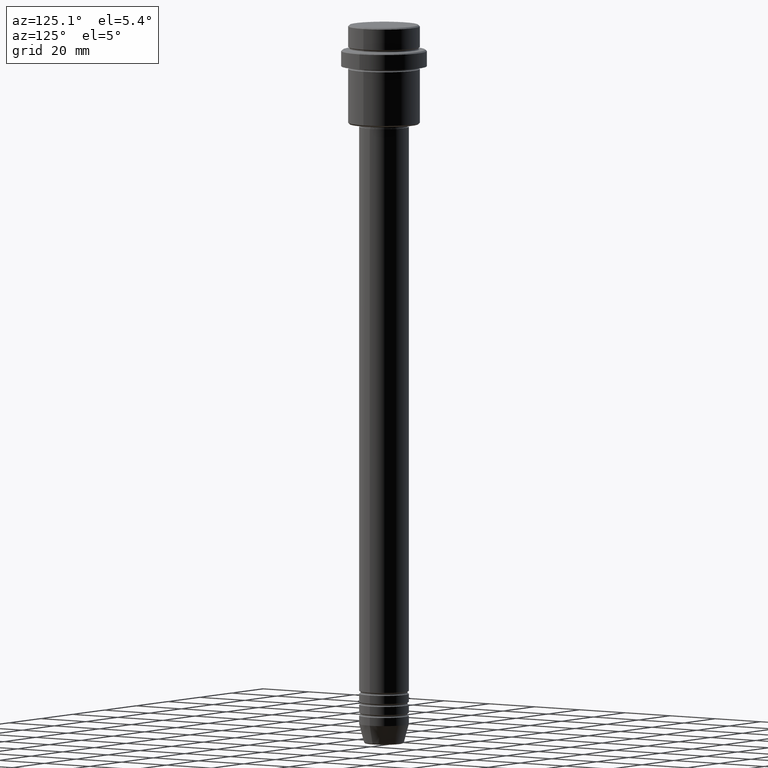
[diagram: clean part render]
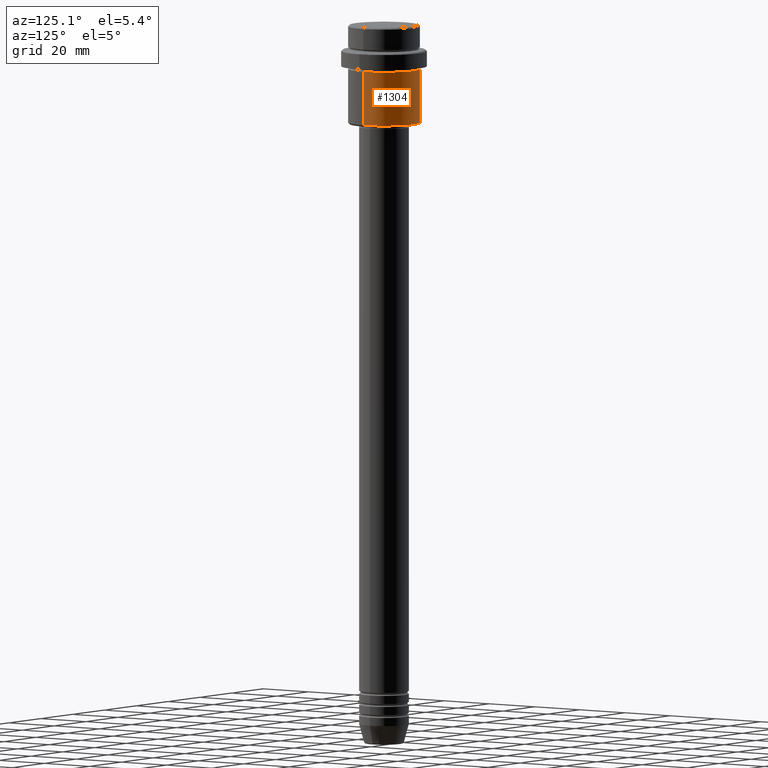
[diagram: same view with one face highlighted and labeled with its STEP entity id]
A machine part, auxiliary view. The second image highlights one B-rep face of the part: STEP entity #1304.
In plain terms, the highlighted cylindrical surface (edge-blend (fillet) strip) has radius 13 mm, axis along (-0, -0, 1).
Its self-contained STEP definition (entity closure, byte-faithful):
#27 = CIRCLE ( 'NONE', #133, 13.00000000000000000 ) ;
#133 = AXIS2_PLACEMENT_3D ( 'NONE', #588, #607, #170 ) ;
#142 = VERTEX_POINT ( 'NONE', #1294 ) ;
#170 = DIRECTION ( 'NONE',  ( 1.000000000000000000, 0.000000000000000000, 0.000000000000000000 ) ) ;
#178 = VECTOR ( 'NONE', #334, 1000.000000000000000 ) ;
#240 = ORIENTED_EDGE ( 'NONE', *, *, #851, .T. ) ;
#262 = FACE_OUTER_BOUND ( 'NONE', #1329, .T. ) ;
#291 = CARTESIAN_POINT ( 'NONE',  ( 0.000000000000000000, 0.000000000000000000, -35.50000000000002842 ) ) ;
#334 = DIRECTION ( 'NONE',  ( -0.000000000000000000, -0.000000000000000000, 1.000000000000000000 ) ) ;
#353 = ORIENTED_EDGE ( 'NONE', *, *, #1339, .F. ) ;
#465 = DIRECTION ( 'NONE',  ( -0.000000000000000000, -0.000000000000000000, 1.000000000000000000 ) ) ;
#487 = VERTEX_POINT ( 'NONE', #965 ) ;
#494 = CYLINDRICAL_SURFACE ( 'NONE', #930, 13.00000000000000000 ) ;
#588 = CARTESIAN_POINT ( 'NONE',  ( 0.000000000000000000, 0.000000000000000000, -16.00000000000000000 ) ) ;
#590 = LINE ( 'NONE', #1027, #1374 ) ;
#607 = DIRECTION ( 'NONE',  ( -0.000000000000000000, -0.000000000000000000, 1.000000000000000000 ) ) ;
#617 = CARTESIAN_POINT ( 'NONE',  ( 0.000000000000000000, 0.000000000000000000, 0.000000000000000000 ) ) ;
#716 = ORIENTED_EDGE ( 'NONE', *, *, #749, .T. ) ;
#740 = CIRCLE ( 'NONE', #811, 13.00000000000000000 ) ;
#749 = EDGE_CURVE ( 'NONE', #487, #142, #590, .T. ) ;
#801 = VERTEX_POINT ( 'NONE', #1344 ) ;
#811 = AXIS2_PLACEMENT_3D ( 'NONE', #291, #942, #1272 ) ;
#824 = CARTESIAN_POINT ( 'NONE',  ( 13.00000000000000000, 0.000000000000000000, -35.50000000000002842 ) ) ;
#851 = EDGE_CURVE ( 'NONE', #918, #487, #740, .T. ) ;
#876 = LINE ( 'NONE', #1209, #178 ) ;
#918 = VERTEX_POINT ( 'NONE', #824 ) ;
#930 = AXIS2_PLACEMENT_3D ( 'NONE', #617, #1385, #936 ) ;
#936 = DIRECTION ( 'NONE',  ( 1.000000000000000000, 0.000000000000000000, 0.000000000000000000 ) ) ;
#942 = DIRECTION ( 'NONE',  ( -0.000000000000000000, -0.000000000000000000, 1.000000000000000000 ) ) ;
#965 = CARTESIAN_POINT ( 'NONE',  ( -13.00000000000000000, 1.592040838891559095E-15, -35.50000000000002842 ) ) ;
#1023 = ORIENTED_EDGE ( 'NONE', *, *, #1156, .F. ) ;
#1027 = CARTESIAN_POINT ( 'NONE',  ( -13.00000000000000000, 1.592040838891559095E-15, 0.000000000000000000 ) ) ;
#1156 = EDGE_CURVE ( 'NONE', #918, #801, #876, .T. ) ;
#1209 = CARTESIAN_POINT ( 'NONE',  ( 13.00000000000000000, 0.000000000000000000, 0.000000000000000000 ) ) ;
#1272 = DIRECTION ( 'NONE',  ( -1.000000000000000000, 0.000000000000000000, 0.000000000000000000 ) ) ;
#1294 = CARTESIAN_POINT ( 'NONE',  ( -13.00000000000000000, 1.592040838891559095E-15, -16.00000000000000000 ) ) ;
#1304 = ADVANCED_FACE ( 'NONE', ( #262 ), #494, .T. ) ;
#1329 = EDGE_LOOP ( 'NONE', ( #240, #716, #353, #1023 ) ) ;
#1339 = EDGE_CURVE ( 'NONE', #801, #142, #27, .T. ) ;
#1344 = CARTESIAN_POINT ( 'NONE',  ( 13.00000000000000000, 0.000000000000000000, -16.00000000000000000 ) ) ;
#1374 = VECTOR ( 'NONE', #465, 1000.000000000000000 ) ;
#1385 = DIRECTION ( 'NONE',  ( -0.000000000000000000, -0.000000000000000000, 1.000000000000000000 ) ) ;